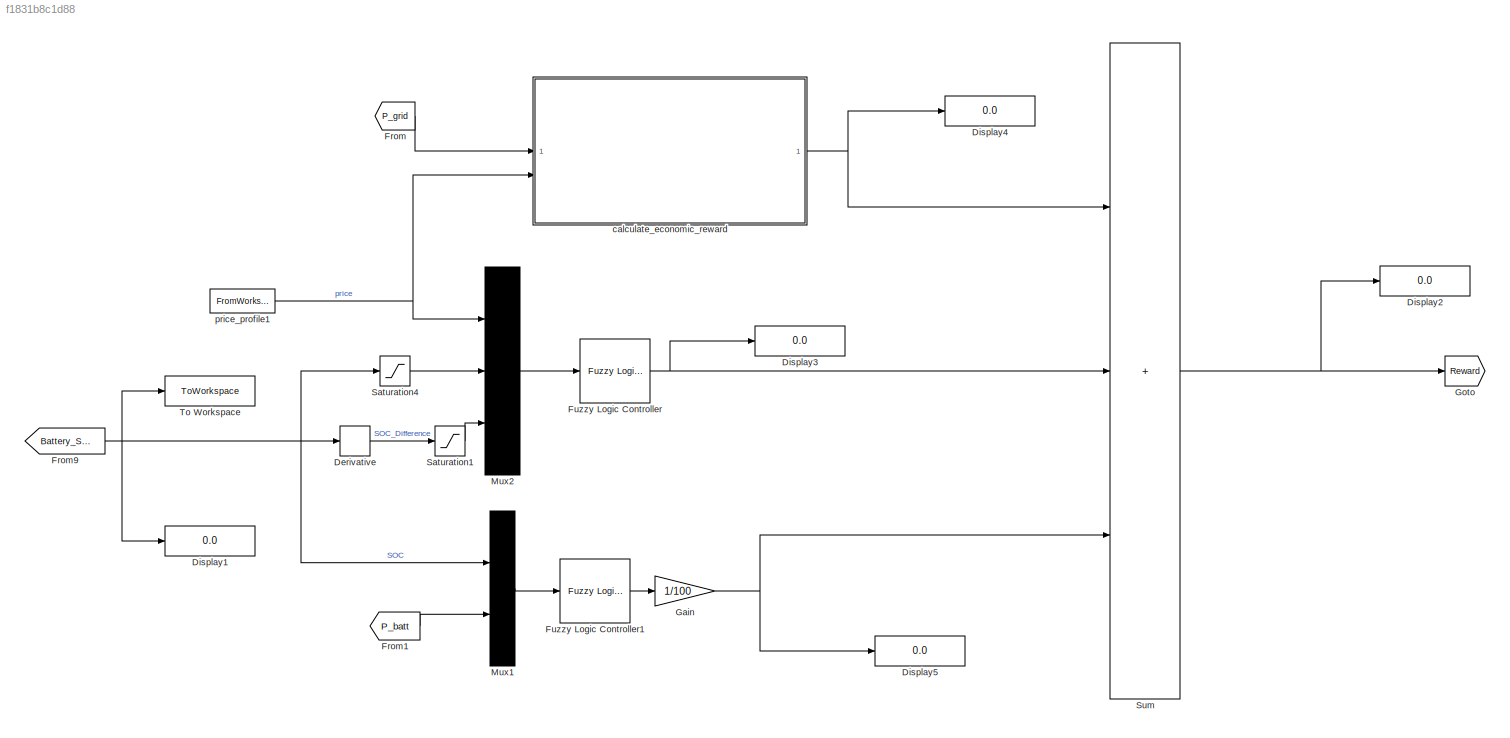
MODEL mdl_f1831b8c1d88
KIND model
CONFIG AbsTol = auto
CONFIG EnableMultiTasking = off
CONFIG FixedStep = auto
CONFIG MaxStep = auto
CONFIG MinStep = auto
CONFIG RelTol = 1e-3
CONFIG SampleTimeConstraint = Unconstrained
CONFIG SolverName = VariableStepAuto
CONFIG StartTime = 0.0
CONFIG StopTime = 10.0
BLOCK [Derivative] Derivative
BLOCK [Display] Display1
  Decimation = 1
BLOCK [Display] Display2
  Decimation = 1
BLOCK [Display] Display3
  Decimation = 1
BLOCK [Display] Display4
  Decimation = 1
BLOCK [Display] Display5
  Decimation = 1
BLOCK [From] From
  GotoTag = P_grid
  TagVisibility = global
BLOCK [From] From1
  GotoTag = P_batt
  TagVisibility = global
BLOCK [From] From9
  GotoTag = Battery_SOC
  TagVisibility = global
BLOCK [Reference] Fuzzy Logic Controller  REF=fuzblock/Fuzzy Logic   (lib defined in mdl_858b3b3e7478)
Controller
  SourceBlock = fuzblock/Fuzzy Logic \nController
  SourceType = Fuzzy Inference System
BLOCK [Reference] Fuzzy Logic Controller1  REF=fuzblock/Fuzzy Logic   (lib defined in mdl_858b3b3e7478)
Controller
  SourceBlock = fuzblock/Fuzzy Logic \nController
  SourceType = Fuzzy Inference System
BLOCK [Gain] Gain
  Gain = 1/100
BLOCK [Goto] Goto
  GotoTag = Reward
  TagVisibility = global
BLOCK [Mux] Mux1
  DisplayOption = bar
  Inputs = 2
BLOCK [Mux] Mux2
  DisplayOption = bar
  Inputs = 3
BLOCK [Saturate] Saturation1
  LinearizeAsGain = off
  LowerLimit = -100
  OutMin = -100
  RndMeth = Simplest
  UpperLimit = 100
  ZeroCross = off
BLOCK [Saturate] Saturation4
  LinearizeAsGain = off
  LowerLimit = 0
  OutMin = 0
  RndMeth = Simplest
  UpperLimit = 100
  ZeroCross = off
BLOCK [Sum] Sum
  IconShape = rectangular
  Inputs = +++
BLOCK [ToWorkspace] To Workspace
  FixptAsFi = on
  MaxDataPoints = inf
  SampleTime = 3600
  Save2DSignal = 2-D array (concatenate along first dimension)
  VariableName = Battery_SOC
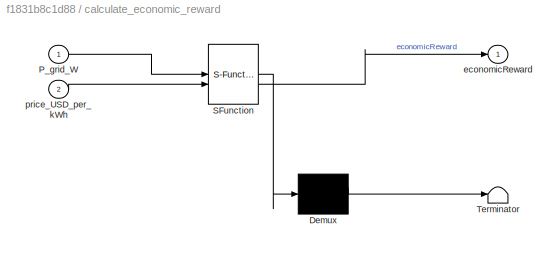
BLOCK [SubSystem] calculate_economic_reward
  ErrorFcn = Stateflow.Translate.translate
  PermitHierarchicalResolution = ExplicitOnly
  SFBlockType = MATLAB Function
  TreatAsAtomicUnit = on
BLOCK [Demux] calculate_economic_reward/ Demux 
  Outputs = 1
BLOCK [S-Function] calculate_economic_reward/ SFunction 
  EnableBusSupport = off
  FunctionName = sf_sfun
  PortCounts = [2 2]
  SFcnIsStateOwnerBlock = off
  SFunctionDeploymentMode = off
  Tag = Stateflow S-Function 5
BLOCK [Terminator] calculate_economic_reward/ Terminator 
BLOCK [Inport] calculate_economic_reward/P_grid_W
BLOCK [Outport] calculate_economic_reward/economicReward
BLOCK [Inport] calculate_economic_reward/price_USD_per_kWh
  Port = 2
BLOCK [FromWorkspace] price_profile1
  VariableName = price_profile
LINE Derivative:1 -> Saturation1:1
LINE From1:1 -> Mux1:2
NET From9:1 -> Derivative:1, Display1:1, Mux1:1, Saturation4:1, To Workspace:1
LINE From:1 -> calculate_economic_reward:1
LINE Fuzzy Logic Controller1:1 -> Gain:1
NET Fuzzy Logic Controller:1 -> Display3:1, Sum:2
NET Gain:1 -> Display5:1, Sum:3
LINE Mux1:1 -> Fuzzy Logic Controller1:1
LINE Mux2:1 -> Fuzzy Logic Controller:1
LINE Saturation1:1 -> Mux2:3
LINE Saturation4:1 -> Mux2:2
NET Sum:1 -> Display2:1, Goto:1
NET calculate_economic_reward:1 -> Display4:1, Sum:1
NET price_profile1:1 -> Mux2:1, calculate_economic_reward:2
note: NET lines group one-source signal fan-out (src -> all destinations, sorted); 1:1 wires keep LINE
CHART calculate_economic_reward states=1 transitions=1
  STATE_LABEL 'eML_blk_kernel()'
  STATE_LABEL 'SCRIPT:\nfunction economicReward = calculate_economic_reward(P_grid_W, price_USD_per_kWh)\n%CALCULATE_ECONOMIC_REWARD Compute the economic reward component.\n%   economicReward = CALCULATE_ECONOMIC_REWARD(P_grid_W, price_USD_per_kWh)\n%   returns the reward associated with buying or selling power at the\n%   current price. Positive values represent revenue, negative values\n%   represent cost. Internal ...<+1152ch>'
CHART  states=0 transitions=0
